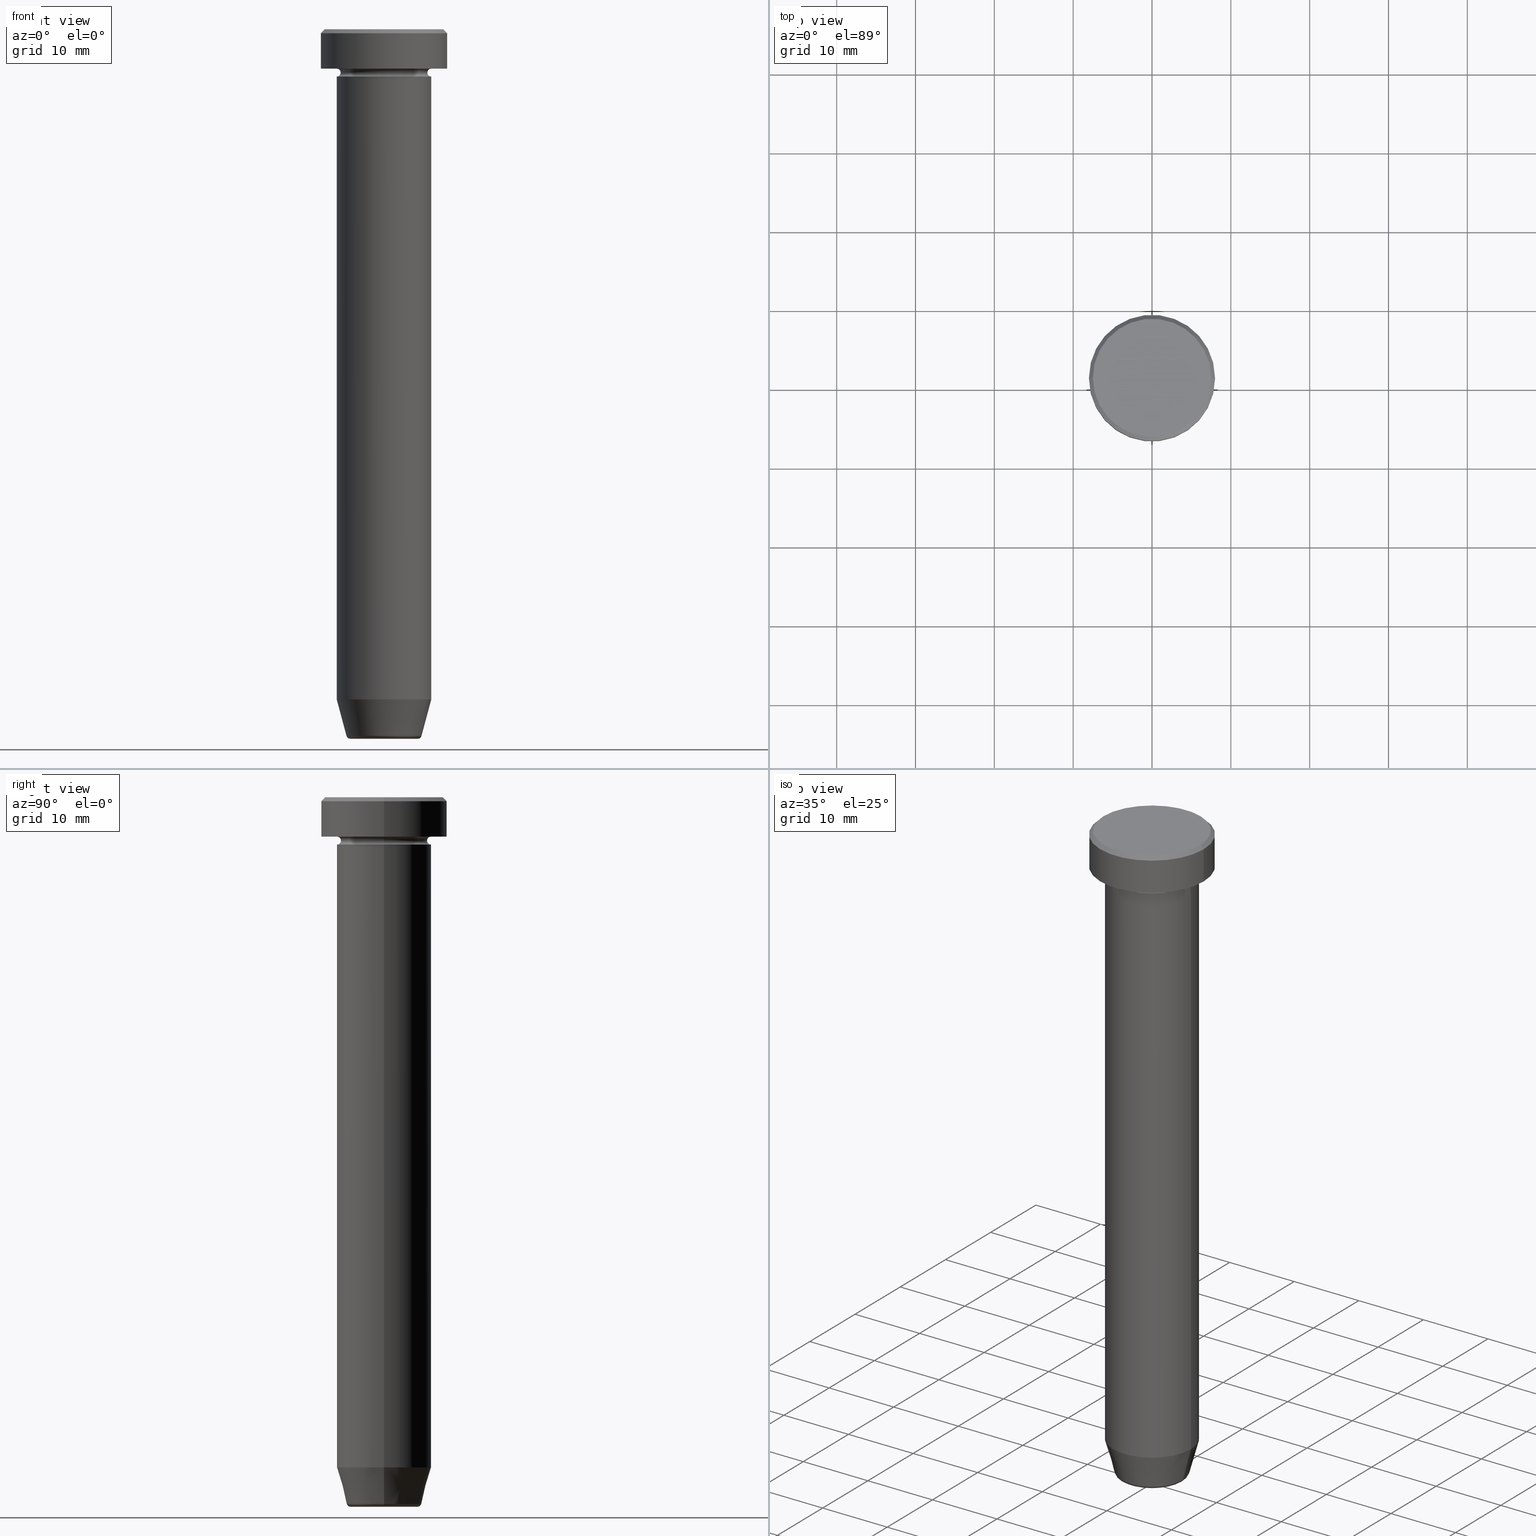
[diagram: canonical four-view strip — front | top / right | iso, engineering-drawing reading convention]
A machine part, canonical four-view strip (front | top / right | iso — engineering-drawing reading convention). The complete STEP part file that produces these views, byte-faithful:
ISO-10303-21;
HEADER;
FILE_DESCRIPTION (( 'STEP AP203' ),
    '1' );
FILE_NAME ('9665.STEP',
    '2024-01-02T23:15:29',
    ( '' ),
    ( '' ),
    'SwSTEP 2.0',
    'SolidWorks 2019',
    '' );
FILE_SCHEMA (( 'CONFIG_CONTROL_DESIGN' ));
ENDSEC;

DATA;
#1 = ADVANCED_FACE ( 'NONE', ( #79 ), #69, .T. ) ;
#2 = ORIENTED_EDGE ( 'NONE', *, *, #291, .T. ) ;
#3 = DIRECTION ( 'NONE',  ( -1.000000000000000000, 0.000000000000000000, 0.000000000000000000 ) ) ;
#4 = CIRCLE ( 'NONE', #405, 7.500000000000009770 ) ;
#5 = PLANE ( 'NONE',  #459 ) ;
#6 = ADVANCED_FACE ( 'NONE', ( #348 ), #164, .T. ) ;
#7 = DIRECTION ( 'NONE',  ( -0.000000000000000000, -0.000000000000000000, 1.000000000000000000 ) ) ;
#8 = AXIS2_PLACEMENT_3D ( 'NONE', #202, #21, #18 ) ;
#9 = ORIENTED_EDGE ( 'NONE', *, *, #495, .F. ) ;
#10 = CARTESIAN_POINT ( 'NONE',  ( 0.000000000000000000, 0.000000000000000000, -89.50000000000000000 ) ) ;
#11 = CIRCLE ( 'NONE', #172, 6.000000000000000000 ) ;
#12 = CARTESIAN_POINT ( 'NONE',  ( 0.000000000000000000, 0.000000000000000000, -90.00000000000000000 ) ) ;
#13 = CARTESIAN_POINT ( 'NONE',  ( 0.000000000000000000, 0.000000000000000000, -84.99999999999998579 ) ) ;
#14 = ORIENTED_EDGE ( 'NONE', *, *, #433, .T. ) ;
#15 = DIRECTION ( 'NONE',  ( 1.000000000000000000, 0.000000000000000000, 0.000000000000000000 ) ) ;
#16 = ORIENTED_EDGE ( 'NONE', *, *, #366, .F. ) ;
#17 = DIRECTION ( 'NONE',  ( 1.000000000000000000, 0.000000000000000000, 0.000000000000000000 ) ) ;
#18 = DIRECTION ( 'NONE',  ( -1.000000000000000000, 0.000000000000000000, -0.000000000000000000 ) ) ;
#19 = ORIENTED_EDGE ( 'NONE', *, *, #245, .F. ) ;
#20 = PERSON_AND_ORGANIZATION_ROLE ( 'creator' ) ;
#21 = DIRECTION ( 'NONE',  ( 0.000000000000000000, 0.000000000000000000, -1.000000000000000000 ) ) ;
#22 = DIRECTION ( 'NONE',  ( -0.000000000000000000, -0.000000000000000000, 1.000000000000000000 ) ) ;
#23 = VECTOR ( 'NONE', #287, 1000.000000000000114 ) ;
#24 = CARTESIAN_POINT ( 'NONE',  ( -6.000000000000000000, 7.347880794884119736E-16, 0.000000000000000000 ) ) ;
#25 = EDGE_LOOP ( 'NONE', ( #109, #219, #362, #588 ) ) ;
#26 = DIRECTION ( 'NONE',  ( -0.000000000000000000, -0.000000000000000000, 1.000000000000000000 ) ) ;
#27 = CARTESIAN_POINT ( 'NONE',  ( 0.000000000000000000, 0.000000000000000000, -5.000000000000000000 ) ) ;
#28 = ORIENTED_EDGE ( 'NONE', *, *, #191, .T. ) ;
#29 = ORIENTED_EDGE ( 'NONE', *, *, #424, .T. ) ;
#30 = AXIS2_PLACEMENT_3D ( 'NONE', #467, #386, #469 ) ;
#31 = DIRECTION ( 'NONE',  ( -0.000000000000000000, -0.000000000000000000, 1.000000000000000000 ) ) ;
#32 = CC_DESIGN_APPROVAL ( #356, ( #140 ) ) ;
#33 = VERTEX_POINT ( 'NONE', #76 ) ;
#34 = LINE ( 'NONE', #211, #423 ) ;
#35 = CARTESIAN_POINT ( 'NONE',  ( -6.000000000000000000, 7.347880794884119736E-16, 0.000000000000000000 ) ) ;
#36 = ORIENTED_EDGE ( 'NONE', *, *, #505, .T. ) ;
#37 = VERTEX_POINT ( 'NONE', #581 ) ;
#38 = CARTESIAN_POINT ( 'NONE',  ( 0.000000000000000000, 0.000000000000000000, -6.000000000000000000 ) ) ;
#39 = SECURITY_CLASSIFICATION_LEVEL ( 'unclassified' ) ;
#40 = PRODUCT_DEFINITION_SHAPE ( 'NONE', 'NONE',  #140 ) ;
#41 = ORIENTED_EDGE ( 'NONE', *, *, #495, .T. ) ;
#42 = EDGE_CURVE ( 'NONE', #567, #272, #519, .T. ) ;
#43 = CIRCLE ( 'NONE', #506, 4.759553456999439547 ) ;
#44 = AXIS2_PLACEMENT_3D ( 'NONE', #350, #529, #481 ) ;
#45 = CONICAL_SURFACE ( 'NONE', #429, 4.660254037844383745, 0.2617993877991497409 ) ;
#46 = DIRECTION ( 'NONE',  ( 1.000000000000000000, 0.000000000000000000, 0.000000000000000000 ) ) ;
#47 = DIRECTION ( 'NONE',  ( 1.000000000000000000, 0.000000000000000000, 0.000000000000000000 ) ) ;
#48 = APPROVAL ( #450, 'NEUR�EN�' ) ;
#49 = EDGE_CURVE ( 'NONE', #452, #336, #570, .T. ) ;
#50 = CARTESIAN_POINT ( 'NONE',  ( 0.000000000000000000, 0.000000000000000000, -22.50000000000000000 ) ) ;
#51 = AXIS2_PLACEMENT_3D ( 'NONE', #564, #384, #15 ) ;
#52 = UNCERTAINTY_MEASURE_WITH_UNIT (LENGTH_MEASURE( 1.000000000000000082E-05 ), #317, 'distance_accuracy_value', 'NONE');
#53 = EDGE_CURVE ( 'NONE', #336, #122, #262, .T. ) ;
#54 = AXIS2_PLACEMENT_3D ( 'NONE', #311, #252, #17 ) ;
#55 = DIRECTION ( 'NONE',  ( 0.000000000000000000, 0.000000000000000000, -1.000000000000000000 ) ) ;
#56 = CARTESIAN_POINT ( 'NONE',  ( 6.000000000000000000, 0.000000000000000000, -22.50000000000000000 ) ) ;
#57 = CARTESIAN_POINT ( 'NONE',  ( 6.000000000000000000, 7.347880794884119736E-16, -4.999999999999999112 ) ) ;
#58 = CARTESIAN_POINT ( 'NONE',  ( 0.000000000000000000, 0.000000000000000000, -5.500000000000000000 ) ) ;
#59 = DIRECTION ( 'NONE',  ( 0.000000000000000000, 0.000000000000000000, -1.000000000000000000 ) ) ;
#60 = DIRECTION ( 'NONE',  ( -0.000000000000000000, -0.000000000000000000, 1.000000000000000000 ) ) ;
#61 = TOROIDAL_SURFACE ( 'NONE', #110, 6.000000000000000000, 0.5000000000000000000 ) ;
#62 = ORIENTED_EDGE ( 'NONE', *, *, #419, .F. ) ;
#63 = FACE_BOUND ( 'NONE', #93, .T. ) ;
#64 = CYLINDRICAL_SURFACE ( 'NONE', #233, 8.000000000000000000 ) ;
#65 = AXIS2_PLACEMENT_3D ( 'NONE', #456, #82, #545 ) ;
#66 = EDGE_CURVE ( 'NONE', #470, #520, #259, .T. ) ;
#67 = ORIENTED_EDGE ( 'NONE', *, *, #337, .F. ) ;
#68 = FACE_OUTER_BOUND ( 'NONE', #448, .T. ) ;
#69 = PLANE ( 'NONE',  #507 ) ;
#70 = CARTESIAN_POINT ( 'NONE',  ( 4.276590543854903004, 0.000000000000000000, -90.00000000000000000 ) ) ;
#71 = ADVANCED_FACE ( 'NONE', ( #385 ), #64, .T. ) ;
#72 = LINE ( 'NONE', #299, #281 ) ;
#73 = CARTESIAN_POINT ( 'NONE',  ( 0.000000000000000000, 0.000000000000000000, 0.000000000000000000 ) ) ;
#74 = PERSON_AND_ORGANIZATION_ROLE ( 'design_owner' ) ;
#75 = VECTOR ( 'NONE', #215, 1000.000000000000000 ) ;
#76 = CARTESIAN_POINT ( 'NONE',  ( -8.000000000000000000, 9.797174393178825657E-16, -0.4999999999999935052 ) ) ;
#77 = CARTESIAN_POINT ( 'NONE',  ( -8.000000000000000000, 9.797174393178825657E-16, -5.000000000000000000 ) ) ;
#78 = EDGE_LOOP ( 'NONE', ( #590, #490, #108, #364 ) ) ;
#79 = FACE_OUTER_BOUND ( 'NONE', #294, .T. ) ;
#80 = DIRECTION ( 'NONE',  ( -0.000000000000000000, -0.000000000000000000, 1.000000000000000000 ) ) ;
#81 = ORIENTED_EDGE ( 'NONE', *, *, #318, .F. ) ;
#82 = DIRECTION ( 'NONE',  ( -0.000000000000000000, -0.000000000000000000, 1.000000000000000000 ) ) ;
#83 = ADVANCED_FACE ( 'NONE', ( #523 ), #300, .T. ) ;
#84 = DIRECTION ( 'NONE',  ( -0.000000000000000000, -0.000000000000000000, 1.000000000000000000 ) ) ;
#85 = CARTESIAN_POINT ( 'NONE',  ( -6.000000000000000000, 7.347880794884119736E-16, -84.99999999999998579 ) ) ;
#86 = ORIENTED_EDGE ( 'NONE', *, *, #550, .T. ) ;
#87 = CARTESIAN_POINT ( 'NONE',  ( -6.000000000000000000, 7.347880794884119736E-16, -22.50000000000000000 ) ) ;
#88 = EDGE_LOOP ( 'NONE', ( #454, #398, #598, #265 ) ) ;
#89 = CARTESIAN_POINT ( 'NONE',  ( 0.000000000000000000, 0.000000000000000000, 0.000000000000000000 ) ) ;
#90 = ADVANCED_FACE ( 'NONE', ( #213 ), #218, .T. ) ;
#91 = DIRECTION ( 'NONE',  ( -1.000000000000000000, 0.000000000000000000, 0.000000000000000000 ) ) ;
#92 = CC_DESIGN_APPROVAL ( #48, ( #374 ) ) ;
#93 = EDGE_LOOP ( 'NONE', ( #125, #449 ) ) ;
#94 = CARTESIAN_POINT ( 'NONE',  ( 0.000000000000000000, 0.000000000000000000, -22.50000000000000000 ) ) ;
#95 = EDGE_LOOP ( 'NONE', ( #62, #209, #306, #223 ) ) ;
#96 = CALENDAR_DATE ( 2024, 3, 1 ) ;
#97 = ADVANCED_FACE ( 'NONE', ( #551 ), #400, .T. ) ;
#98 = PERSON_AND_ORGANIZATION_ROLE ( 'classification_officer' ) ;
#99 = ORIENTED_EDGE ( 'NONE', *, *, #188, .F. ) ;
#100 = AXIS2_PLACEMENT_3D ( 'NONE', #27, #228, #544 ) ;
#101 = AXIS2_PLACEMENT_3D ( 'NONE', #94, #129, #266 ) ;
#102 = FACE_OUTER_BOUND ( 'NONE', #408, .T. ) ;
#103 = CARTESIAN_POINT ( 'NONE',  ( 4.276590543854903004, 0.000000000000000000, -89.50000000000000000 ) ) ;
#104 = CONICAL_SURFACE ( 'NONE', #422, 7.500000000000009770, 0.7853981633974447263 ) ;
#105 = EDGE_CURVE ( 'NONE', #457, #567, #268, .T. ) ;
#106 = DIRECTION ( 'NONE',  ( 1.000000000000000000, 0.000000000000000000, 0.000000000000000000 ) ) ;
#107 = DIRECTION ( 'NONE',  ( 1.000000000000000000, 0.000000000000000000, 0.000000000000000000 ) ) ;
#108 = ORIENTED_EDGE ( 'NONE', *, *, #318, .T. ) ;
#109 = ORIENTED_EDGE ( 'NONE', *, *, #245, .T. ) ;
#110 = AXIS2_PLACEMENT_3D ( 'NONE', #58, #244, #425 ) ;
#111 = FACE_OUTER_BOUND ( 'NONE', #175, .T. ) ;
#112 = ORIENTED_EDGE ( 'NONE', *, *, #269, .F. ) ;
#113 = APPROVAL_PERSON_ORGANIZATION ( #258, #48, #438 ) ;
#114 = ADVANCED_FACE ( 'NONE', ( #274 ), #246, .F. ) ;
#115 = DIRECTION ( 'NONE',  ( -0.000000000000000000, -0.000000000000000000, 1.000000000000000000 ) ) ;
#116 = EDGE_LOOP ( 'NONE', ( #118, #345, #2, #361 ) ) ;
#117 = CARTESIAN_POINT ( 'NONE',  ( 0.000000000000000000, 0.000000000000000000, -90.00000000000000000 ) ) ;
#118 = ORIENTED_EDGE ( 'NONE', *, *, #200, .F. ) ;
#119 = DIRECTION ( 'NONE',  ( -0.000000000000000000, -0.000000000000000000, 1.000000000000000000 ) ) ;
#120 = DIRECTION ( 'NONE',  ( -0.000000000000000000, -0.000000000000000000, 1.000000000000000000 ) ) ;
#121 = CARTESIAN_POINT ( 'NONE',  ( -4.276590543854903004, 5.237312920795746049E-16, -89.50000000000000000 ) ) ;
#122 = VERTEX_POINT ( 'NONE', #85 ) ;
#123 = EDGE_CURVE ( 'NONE', #520, #541, #312, .T. ) ;
#124 = AXIS2_PLACEMENT_3D ( 'NONE', #479, #377, #255 ) ;
#125 = ORIENTED_EDGE ( 'NONE', *, *, #453, .T. ) ;
#126 = CARTESIAN_POINT ( 'NONE',  ( 0.000000000000000000, 0.000000000000000000, -0.4999999999999935052 ) ) ;
#127 = ORIENTED_EDGE ( 'NONE', *, *, #461, .F. ) ;
#128 = VERTEX_POINT ( 'NONE', #446 ) ;
#129 = DIRECTION ( 'NONE',  ( -0.000000000000000000, -0.000000000000000000, 1.000000000000000000 ) ) ;
#130 = CARTESIAN_POINT ( 'NONE',  ( 7.500000000000009770, 9.491012693391993703E-16, 0.000000000000000000 ) ) ;
#131 = ORIENTED_EDGE ( 'NONE', *, *, #433, .F. ) ;
#132 = CIRCLE ( 'NONE', #270, 6.000000000000000000 ) ;
#133 = AXIS2_PLACEMENT_3D ( 'NONE', #388, #510, #106 ) ;
#134 = DIRECTION ( 'NONE',  ( 1.000000000000000000, 0.000000000000000000, 0.000000000000000000 ) ) ;
#135 = ORIENTED_EDGE ( 'NONE', *, *, #191, .F. ) ;
#136 = DATE_AND_TIME ( #96, #159 ) ;
#137 = APPROVAL_DATE_TIME ( #235, #199 ) ;
#138 = APPLICATION_CONTEXT ( 'configuration controlled 3d designs of mechanical parts and assemblies' ) ;
#139 = CARTESIAN_POINT ( 'NONE',  ( 0.000000000000000000, 0.000000000000000000, -5.500000000000000000 ) ) ;
#140 = PRODUCT_DEFINITION ( 'NEZN�M�', '', #374, #329 ) ;
#141 = AXIS2_PLACEMENT_3D ( 'NONE', #482, #7, #297 ) ;
#142 = DIRECTION ( 'NONE',  ( 1.000000000000000000, 0.000000000000000000, 0.000000000000000000 ) ) ;
#143 = CONICAL_SURFACE ( 'NONE', #475, 7.500000000000009770, 0.7853981633974447263 ) ;
#144 = CARTESIAN_POINT ( 'NONE',  ( 4.759553456999439547, 0.000000000000000000, -89.62940952255125637 ) ) ;
#145 = ADVANCED_FACE ( 'NONE', ( #494 ), #500, .F. ) ;
#146 = DIRECTION ( 'NONE',  ( 0.000000000000000000, 0.000000000000000000, -1.000000000000000000 ) ) ;
#147 = CIRCLE ( 'NONE', #447, 0.5000000000000004441 ) ;
#148 = CARTESIAN_POINT ( 'NONE',  ( 6.000000000000000000, 0.000000000000000000, -22.50000000000000000 ) ) ;
#149 = CC_DESIGN_APPROVAL ( #199, ( #185 ) ) ;
#150 = CARTESIAN_POINT ( 'NONE',  ( 0.000000000000000000, 0.000000000000000000, 0.000000000000000000 ) ) ;
#151 = ORIENTED_EDGE ( 'NONE', *, *, #282, .F. ) ;
#152 = DIRECTION ( 'NONE',  ( 1.000000000000000000, 0.000000000000000000, 0.000000000000000000 ) ) ;
#153 = DIRECTION ( 'NONE',  ( -0.000000000000000000, -1.000000000000000000, -0.000000000000000000 ) ) ;
#154 = EDGE_CURVE ( 'NONE', #359, #267, #156, .T. ) ;
#155 = DIRECTION ( 'NONE',  ( -0.000000000000000000, -0.000000000000000000, 1.000000000000000000 ) ) ;
#156 = CIRCLE ( 'NONE', #100, 6.000000000000000000 ) ;
#157 = ORIENTED_EDGE ( 'NONE', *, *, #575, .F. ) ;
#158 = ORIENTED_EDGE ( 'NONE', *, *, #515, .F. ) ;
#159 = LOCAL_TIME ( 0, 15, 29.00000000000000000, #352 ) ;
#160 = EDGE_CURVE ( 'NONE', #122, #580, #222, .T. ) ;
#161 = DIRECTION ( 'NONE',  ( 1.000000000000000000, 0.000000000000000000, 0.000000000000000000 ) ) ;
#162 =( NAMED_UNIT ( * ) PLANE_ANGLE_UNIT ( ) SI_UNIT ( $, .RADIAN. ) );
#163 = FACE_OUTER_BOUND ( 'NONE', #478, .T. ) ;
#164 = CYLINDRICAL_SURFACE ( 'NONE', #44, 6.000000000000000000 ) ;
#165 = CARTESIAN_POINT ( 'NONE',  ( 0.000000000000000000, 0.000000000000000000, -6.000000000000000000 ) ) ;
#166 = DIRECTION ( 'NONE',  ( 1.000000000000000000, 0.000000000000000000, 0.000000000000000000 ) ) ;
#167 = VERTEX_POINT ( 'NONE', #77 ) ;
#168 = DIRECTION ( 'NONE',  ( -0.000000000000000000, -0.000000000000000000, 1.000000000000000000 ) ) ;
#169 = EDGE_CURVE ( 'NONE', #457, #336, #428, .T. ) ;
#170 = VERTEX_POINT ( 'NONE', #130 ) ;
#171 = CIRCLE ( 'NONE', #30, 4.276590543854903004 ) ;
#172 = AXIS2_PLACEMENT_3D ( 'NONE', #13, #60, #242 ) ;
#173 = DIRECTION ( 'NONE',  ( 1.000000000000000000, 0.000000000000000000, 0.000000000000000000 ) ) ;
#174 = ORIENTED_EDGE ( 'NONE', *, *, #371, .T. ) ;
#175 = EDGE_LOOP ( 'NONE', ( #383, #537, #476, #112 ) ) ;
#176 = ORIENTED_EDGE ( 'NONE', *, *, #238, .T. ) ;
#177 = APPLICATION_PROTOCOL_DEFINITION ( 'international standard', 'config_control_design', 1994, #397 ) ;
#178 = DIRECTION ( 'NONE',  ( -0.000000000000000000, -0.000000000000000000, 1.000000000000000000 ) ) ;
#179 = ORIENTED_EDGE ( 'NONE', *, *, #474, .F. ) ;
#180 = ORIENTED_EDGE ( 'NONE', *, *, #105, .T. ) ;
#181 = AXIS2_PLACEMENT_3D ( 'NONE', #10, #477, #152 ) ;
#182 = VECTOR ( 'NONE', #203, 1000.000000000000000 ) ;
#183 = DIRECTION ( 'NONE',  ( -1.000000000000000000, 0.000000000000000000, 0.000000000000000000 ) ) ;
#184 = DIRECTION ( 'NONE',  ( 0.000000000000000000, 0.000000000000000000, -1.000000000000000000 ) ) ;
#185 = SECURITY_CLASSIFICATION ( '', '', #39 ) ;
#186 = CALENDAR_DATE ( 2024, 3, 1 ) ;
#187 = CC_DESIGN_PERSON_AND_ORGANIZATION_ASSIGNMENT ( #595, #98, ( #185 ) ) ;
#188 = EDGE_CURVE ( 'NONE', #541, #37, #132, .T. ) ;
#189 = AXIS2_PLACEMENT_3D ( 'NONE', #342, #119, #293 ) ;
#190 = LOCAL_TIME ( 0, 15, 29.00000000000000000, #273 ) ;
#191 = EDGE_CURVE ( 'NONE', #470, #37, #351, .T. ) ;
#192 = DIRECTION ( 'NONE',  ( 1.000000000000000000, 0.000000000000000000, 0.000000000000000000 ) ) ;
#193 = FACE_OUTER_BOUND ( 'NONE', #25, .T. ) ;
#194 = CONICAL_SURFACE ( 'NONE', #582, 4.660254037844383745, 0.2617993877991497409 ) ;
#195 = CARTESIAN_POINT ( 'NONE',  ( 0.000000000000000000, 0.000000000000000000, -0.4999999999999935052 ) ) ;
#196 = ORIENTED_EDGE ( 'NONE', *, *, #169, .T. ) ;
#197 = CIRCLE ( 'NONE', #133, 7.500000000000009770 ) ;
#198 = PLANE ( 'NONE',  #8 ) ;
#199 = APPROVAL ( #373, 'NEUR�EN�' ) ;
#200 = EDGE_CURVE ( 'NONE', #323, #541, #147, .T. ) ;
#201 = ORIENTED_EDGE ( 'NONE', *, *, #413, .F. ) ;
#202 = CARTESIAN_POINT ( 'NONE',  ( 0.000000000000000000, 8.000000000000000000, -5.000000000000000000 ) ) ;
#203 = DIRECTION ( 'NONE',  ( -0.000000000000000000, -0.000000000000000000, 1.000000000000000000 ) ) ;
#204 = DIRECTION ( 'NONE',  ( -1.000000000000000000, 0.000000000000000000, 0.000000000000000000 ) ) ;
#205 = CARTESIAN_POINT ( 'NONE',  ( 5.500000000000000000, 0.000000000000000000, -5.500000000000000000 ) ) ;
#206 = CARTESIAN_POINT ( 'NONE',  ( 8.000000000000000000, 0.000000000000000000, 0.000000000000000000 ) ) ;
#207 = APPROVAL_DATE_TIME ( #555, #356 ) ;
#208 = DIRECTION ( 'NONE',  ( 1.000000000000000000, 0.000000000000000000, 0.000000000000000000 ) ) ;
#209 = ORIENTED_EDGE ( 'NONE', *, *, #302, .T. ) ;
#210 = AXIS2_PLACEMENT_3D ( 'NONE', #340, #390, #243 ) ;
#211 = CARTESIAN_POINT ( 'NONE',  ( -8.000000000000000000, 9.797174393178825657E-16, 0.000000000000000000 ) ) ;
#212 = DIRECTION ( 'NONE',  ( 1.000000000000000000, 0.000000000000000000, 0.000000000000000000 ) ) ;
#213 = FACE_OUTER_BOUND ( 'NONE', #88, .T. ) ;
#214 = CARTESIAN_POINT ( 'NONE',  ( -4.660254037844383745, 5.707165190659652868E-16, -90.00000000000000000 ) ) ;
#215 = DIRECTION ( 'NONE',  ( -0.000000000000000000, -0.000000000000000000, 1.000000000000000000 ) ) ;
#216 = FACE_OUTER_BOUND ( 'NONE', #95, .T. ) ;
#217 = EDGE_LOOP ( 'NONE', ( #548, #14 ) ) ;
#218 = CYLINDRICAL_SURFACE ( 'NONE', #558, 6.000000000000000000 ) ;
#219 = ORIENTED_EDGE ( 'NONE', *, *, #419, .T. ) ;
#220 = CARTESIAN_POINT ( 'NONE',  ( -4.276590543854903004, 5.533042413640413448E-16, -90.00000000000000000 ) ) ;
#221 = AXIS2_PLACEMENT_3D ( 'NONE', #50, #463, #47 ) ;
#222 = LINE ( 'NONE', #24, #75 ) ;
#223 = ORIENTED_EDGE ( 'NONE', *, *, #154, .F. ) ;
#224 = PRODUCT ( '9665', '9665', '', ( #504 ) ) ;
#225 = ORIENTED_EDGE ( 'NONE', *, *, #66, .F. ) ;
#226 = CARTESIAN_POINT ( 'NONE',  ( 6.000000000000000000, 0.000000000000000000, -84.99999999999998579 ) ) ;
#227 = DATE_AND_TIME ( #572, #439 ) ;
#228 = DIRECTION ( 'NONE',  ( -0.000000000000000000, -0.000000000000000000, 1.000000000000000000 ) ) ;
#229 = VERTEX_POINT ( 'NONE', #592 ) ;
#230 = EDGE_LOOP ( 'NONE', ( #67, #9, #36, #313 ) ) ;
#231 = ORIENTED_EDGE ( 'NONE', *, *, #371, .F. ) ;
#232 = CIRCLE ( 'NONE', #473, 8.000000000000000000 ) ;
#233 = AXIS2_PLACEMENT_3D ( 'NONE', #565, #155, #341 ) ;
#234 = ADVANCED_FACE ( 'NONE', ( #579 ), #547, .T. ) ;
#235 = DATE_AND_TIME ( #186, #416 ) ;
#236 = CIRCLE ( 'NONE', #524, 4.276590543854903004 ) ;
#237 = APPROVAL_PERSON_ORGANIZATION ( #557, #199, #599 ) ;
#238 = EDGE_CURVE ( 'NONE', #229, #33, #232, .T. ) ;
#239 = DIRECTION ( 'NONE',  ( -1.000000000000000000, 0.000000000000000000, 0.000000000000000000 ) ) ;
#240 = DIRECTION ( 'NONE',  ( 1.000000000000000000, 0.000000000000000000, 0.000000000000000000 ) ) ;
#241 = CARTESIAN_POINT ( 'NONE',  ( 6.000000000000000000, 0.000000000000000000, -5.500000000000000000 ) ) ;
#242 = DIRECTION ( 'NONE',  ( 1.000000000000000000, 0.000000000000000000, 0.000000000000000000 ) ) ;
#243 = DIRECTION ( 'NONE',  ( 1.000000000000000000, 0.000000000000000000, 0.000000000000000000 ) ) ;
#244 = DIRECTION ( 'NONE',  ( 0.000000000000000000, 0.000000000000000000, -1.000000000000000000 ) ) ;
#245 = EDGE_CURVE ( 'NONE', #323, #578, #404, .T. ) ;
#246 = TOROIDAL_SURFACE ( 'NONE', #367, 6.000000000000000000, 0.5000000000000000000 ) ;
#247 = DIRECTION ( 'NONE',  ( 0.000000000000000000, -0.000000000000000000, 1.000000000000000000 ) ) ;
#248 = CARTESIAN_POINT ( 'NONE',  ( -5.500000000000000000, 7.041719095097280880E-16, -5.500000000000000000 ) ) ;
#249 = AXIS2_PLACEMENT_3D ( 'NONE', #303, #26, #290 ) ;
#250 = CIRCLE ( 'NONE', #571, 6.000000000000000000 ) ;
#251 = DIRECTION ( 'NONE',  ( 0.000000000000000000, 0.000000000000000000, -1.000000000000000000 ) ) ;
#252 = DIRECTION ( 'NONE',  ( -0.000000000000000000, -0.000000000000000000, 1.000000000000000000 ) ) ;
#253 = ORIENTED_EDGE ( 'NONE', *, *, #53, .T. ) ;
#254 = CARTESIAN_POINT ( 'NONE',  ( 0.000000000000000000, 0.000000000000000000, -89.62940952255125637 ) ) ;
#255 = DIRECTION ( 'NONE',  ( -1.000000000000000000, -1.224646799147351482E-16, 0.000000000000000000 ) ) ;
#256 = APPLICATION_PROTOCOL_DEFINITION ( 'international standard', 'config_control_design', 1994, #138 ) ;
#257 = AXIS2_PLACEMENT_3D ( 'NONE', #139, #324, #46 ) ;
#258 = PERSON_AND_ORGANIZATION ( #414, #540 ) ;
#259 = CIRCLE ( 'NONE', #249, 6.000000000000000000 ) ;
#260 = CIRCLE ( 'NONE', #332, 6.000000000000000000 ) ;
#261 = ADVANCED_FACE ( 'NONE', ( #420 ), #104, .T. ) ;
#262 = LINE ( 'NONE', #214, #512 ) ;
#263 = DIRECTION ( 'NONE',  ( -1.000000000000000000, 0.000000000000000000, -0.000000000000000000 ) ) ;
#264 = ORIENTED_EDGE ( 'NONE', *, *, #49, .F. ) ;
#265 = ORIENTED_EDGE ( 'NONE', *, *, #42, .F. ) ;
#266 = DIRECTION ( 'NONE',  ( 1.000000000000000000, 0.000000000000000000, 0.000000000000000000 ) ) ;
#267 = VERTEX_POINT ( 'NONE', #468 ) ;
#268 = LINE ( 'NONE', #319, #327 ) ;
#269 = EDGE_CURVE ( 'NONE', #546, #457, #485, .T. ) ;
#270 = AXIS2_PLACEMENT_3D ( 'NONE', #165, #584, #395 ) ;
#271 = AXIS2_PLACEMENT_3D ( 'NONE', #195, #380, #161 ) ;
#272 = VERTEX_POINT ( 'NONE', #56 ) ;
#273 = COORDINATED_UNIVERSAL_TIME_OFFSET ( 1, 0, .AHEAD. ) ;
#274 = FACE_OUTER_BOUND ( 'NONE', #116, .T. ) ;
#275 = ADVANCED_FACE ( 'NONE', ( #193 ), #61, .F. ) ;
#276 = ORIENTED_EDGE ( 'NONE', *, *, #53, .F. ) ;
#277 = PERSON_AND_ORGANIZATION ( #414, #540 ) ;
#278 = CARTESIAN_POINT ( 'NONE',  ( 0.000000000000000000, 0.000000000000000000, -90.00000000000000000 ) ) ;
#279 = COORDINATED_UNIVERSAL_TIME_OFFSET ( 1, 0, .AHEAD. ) ;
#280 = EDGE_LOOP ( 'NONE', ( #389, #29, #86, #176 ) ) ;
#281 = VECTOR ( 'NONE', #568, 1000.000000000000114 ) ;
#282 = EDGE_CURVE ( 'NONE', #546, #452, #236, .T. ) ;
#283 = CC_DESIGN_PERSON_AND_ORGANIZATION_ASSIGNMENT ( #409, #591, ( #374 ) ) ;
#284 = DIRECTION ( 'NONE',  ( 0.000000000000000000, 0.000000000000000000, -1.000000000000000000 ) ) ;
#285 = CIRCLE ( 'NONE', #51, 6.000000000000000000 ) ;
#286 = SHAPE_DEFINITION_REPRESENTATION ( #40, #553 ) ;
#287 = DIRECTION ( 'NONE',  ( -0.7071067811865451302, 0.000000000000000000, -0.7071067811865500152 ) ) ;
#288 = DIRECTION ( 'NONE',  ( -0.000000000000000000, -0.000000000000000000, 1.000000000000000000 ) ) ;
#289 = EDGE_CURVE ( 'NONE', #452, #546, #171, .T. ) ;
#290 = DIRECTION ( 'NONE',  ( 1.000000000000000000, 0.000000000000000000, 0.000000000000000000 ) ) ;
#291 = EDGE_CURVE ( 'NONE', #578, #37, #330, .T. ) ;
#292 = VECTOR ( 'NONE', #31, 1000.000000000000000 ) ;
#293 = DIRECTION ( 'NONE',  ( 1.000000000000000000, 0.000000000000000000, 0.000000000000000000 ) ) ;
#294 = EDGE_LOOP ( 'NONE', ( #225, #231 ) ) ;
#295 = APPROVAL_PERSON_ORGANIZATION ( #480, #356, #432 ) ;
#296 = DIRECTION ( 'NONE',  ( -0.2588190451025210170, 3.169619151431768639E-17, 0.9659258262890680902 ) ) ;
#297 = DIRECTION ( 'NONE',  ( 1.000000000000000000, 0.000000000000000000, 0.000000000000000000 ) ) ;
#298 = CARTESIAN_POINT ( 'NONE',  ( -7.500000000000009770, 0.000000000000000000, 0.000000000000000000 ) ) ;
#299 = CARTESIAN_POINT ( 'NONE',  ( 7.500000000000009770, 9.184850993605161750E-16, 0.000000000000000000 ) ) ;
#300 = CYLINDRICAL_SURFACE ( 'NONE', #583, 6.000000000000000000 ) ;
#301 = DIRECTION ( 'NONE',  ( 0.000000000000000000, -1.000000000000000000, 0.000000000000000000 ) ) ;
#302 = EDGE_CURVE ( 'NONE', #578, #323, #326, .T. ) ;
#303 = CARTESIAN_POINT ( 'NONE',  ( 0.000000000000000000, 0.000000000000000000, -22.50000000000000000 ) ) ;
#304 = CARTESIAN_POINT ( 'NONE',  ( 0.000000000000000000, 0.000000000000000000, 0.000000000000000000 ) ) ;
#305 = AXIS2_PLACEMENT_3D ( 'NONE', #533, #516, #107 ) ;
#306 = ORIENTED_EDGE ( 'NONE', *, *, #357, .T. ) ;
#307 = DIRECTION ( 'NONE',  ( 1.000000000000000000, 0.000000000000000000, 0.000000000000000000 ) ) ;
#308 = CC_DESIGN_DATE_AND_TIME_ASSIGNMENT ( #566, #344, ( #185 ) ) ;
#309 = ADVANCED_FACE ( 'NONE', ( #426 ), #569, .F. ) ;
#310 = CARTESIAN_POINT ( 'NONE',  ( -6.000000000000000000, 7.347880794884119736E-16, -5.500000000000000000 ) ) ;
#311 = CARTESIAN_POINT ( 'NONE',  ( 0.000000000000000000, 0.000000000000000000, -5.000000000000000000 ) ) ;
#312 = LINE ( 'NONE', #35, #355 ) ;
#313 = ORIENTED_EDGE ( 'NONE', *, *, #238, .F. ) ;
#314 = CIRCLE ( 'NONE', #522, 0.5000000000000004441 ) ;
#315 = MANIFOLD_SOLID_BREP ( 'Zkosen�1', #460 ) ;
#316 = CC_DESIGN_SECURITY_CLASSIFICATION ( #185, ( #374 ) ) ;
#317 =( LENGTH_UNIT ( ) NAMED_UNIT ( * ) SI_UNIT ( .MILLI., .METRE. ) );
#318 = EDGE_CURVE ( 'NONE', #33, #229, #562, .T. ) ;
#319 = CARTESIAN_POINT ( 'NONE',  ( 4.660254037844383745, 0.000000000000000000, -90.00000000000000000 ) ) ;
#320 = EDGE_LOOP ( 'NONE', ( #158, #443, #81, #325 ) ) ;
#321 = DIRECTION ( 'NONE',  ( -0.000000000000000000, -0.000000000000000000, 1.000000000000000000 ) ) ;
#322 = CALENDAR_DATE ( 2024, 3, 1 ) ;
#323 = VERTEX_POINT ( 'NONE', #248 ) ;
#324 = DIRECTION ( 'NONE',  ( -0.000000000000000000, -0.000000000000000000, 1.000000000000000000 ) ) ;
#325 = ORIENTED_EDGE ( 'NONE', *, *, #505, .F. ) ;
#326 = CIRCLE ( 'NONE', #189, 5.500000000000000000 ) ;
#327 = VECTOR ( 'NONE', #407, 1000.000000000000114 ) ;
#328 = CARTESIAN_POINT ( 'NONE',  ( 0.000000000000000000, 0.000000000000000000, 0.000000000000000000 ) ) ;
#329 = DESIGN_CONTEXT ( 'detailed design', #138, 'design' ) ;
#330 = CIRCLE ( 'NONE', #372, 0.5000000000000004441 ) ;
#331 = FACE_OUTER_BOUND ( 'NONE', #444, .T. ) ;
#332 = AXIS2_PLACEMENT_3D ( 'NONE', #412, #321, #3 ) ;
#333 = CARTESIAN_POINT ( 'NONE',  ( -6.000000000000000000, 0.000000000000000000, -5.500000000000000000 ) ) ;
#334 = LINE ( 'NONE', #206, #597 ) ;
#335 = CARTESIAN_POINT ( 'NONE',  ( -6.000000000000000000, 7.347880794884119736E-16, -22.50000000000000000 ) ) ;
#336 = VERTEX_POINT ( 'NONE', #471 ) ;
#337 = EDGE_CURVE ( 'NONE', #170, #229, #72, .T. ) ;
#338 = DIRECTION ( 'NONE',  ( 1.000000000000000000, 0.000000000000000000, 0.000000000000000000 ) ) ;
#339 = EDGE_LOOP ( 'NONE', ( #19, #368, #543, #415 ) ) ;
#340 = CARTESIAN_POINT ( 'NONE',  ( 0.000000000000000000, 0.000000000000000000, -22.50000000000000000 ) ) ;
#341 = DIRECTION ( 'NONE',  ( 1.000000000000000000, 0.000000000000000000, 0.000000000000000000 ) ) ;
#342 = CARTESIAN_POINT ( 'NONE',  ( 0.000000000000000000, 0.000000000000000000, -5.500000000000000000 ) ) ;
#343 = CLOSED_SHELL ( 'NONE', ( #379, #391, #90, #145, #83, #466, #542, #401 ) ) ;
#344 = DATE_TIME_ROLE ( 'classification_date' ) ;
#345 = ORIENTED_EDGE ( 'NONE', *, *, #302, .F. ) ;
#346 =( GEOMETRIC_REPRESENTATION_CONTEXT ( 3 ) GLOBAL_UNCERTAINTY_ASSIGNED_CONTEXT ( ( #52 ) ) GLOBAL_UNIT_ASSIGNED_CONTEXT ( ( #317, #162, #532 ) ) REPRESENTATION_CONTEXT ( 'NONE', 'WORKASPACE' ) );
#347 = DIRECTION ( 'NONE',  ( 1.000000000000000000, 0.000000000000000000, 0.000000000000000000 ) ) ;
#348 = FACE_OUTER_BOUND ( 'NONE', #489, .T. ) ;
#349 = ADVANCED_FACE ( 'NONE', ( #63, #430 ), #198, .T. ) ;
#350 = CARTESIAN_POINT ( 'NONE',  ( 0.000000000000000000, 0.000000000000000000, 0.000000000000000000 ) ) ;
#351 = LINE ( 'NONE', #587, #292 ) ;
#352 = COORDINATED_UNIVERSAL_TIME_OFFSET ( 1, 0, .AHEAD. ) ;
#353 = ORIENTED_EDGE ( 'NONE', *, *, #413, .T. ) ;
#354 = DIRECTION ( 'NONE',  ( 1.000000000000000000, 0.000000000000000000, 0.000000000000000000 ) ) ;
#355 = VECTOR ( 'NONE', #178, 1000.000000000000000 ) ;
#356 = APPROVAL ( #387, 'NEUR�EN�' ) ;
#357 = EDGE_CURVE ( 'NONE', #323, #267, #314, .T. ) ;
#358 = CIRCLE ( 'NONE', #101, 6.000000000000000000 ) ;
#359 = VERTEX_POINT ( 'NONE', #57 ) ;
#360 = DIRECTION ( 'NONE',  ( 0.000000000000000000, 0.000000000000000000, -1.000000000000000000 ) ) ;
#361 = ORIENTED_EDGE ( 'NONE', *, *, #461, .T. ) ;
#362 = ORIENTED_EDGE ( 'NONE', *, *, #453, .F. ) ;
#363 = CARTESIAN_POINT ( 'NONE',  ( 0.000000000000000000, 0.000000000000000000, -5.500000000000000000 ) ) ;
#364 = ORIENTED_EDGE ( 'NONE', *, *, #550, .F. ) ;
#365 = ORIENTED_EDGE ( 'NONE', *, *, #160, .F. ) ;
#366 = EDGE_CURVE ( 'NONE', #122, #567, #285, .T. ) ;
#367 = AXIS2_PLACEMENT_3D ( 'NONE', #363, #451, #173 ) ;
#368 = ORIENTED_EDGE ( 'NONE', *, *, #200, .T. ) ;
#369 = AXIS2_PLACEMENT_3D ( 'NONE', #487, #455, #183 ) ;
#370 = ORIENTED_EDGE ( 'NONE', *, *, #123, .T. ) ;
#371 = EDGE_CURVE ( 'NONE', #520, #470, #435, .T. ) ;
#372 = AXIS2_PLACEMENT_3D ( 'NONE', #241, #301, #59 ) ;
#373 = APPROVAL_STATUS ( 'not_yet_approved' ) ;
#374 = PRODUCT_DEFINITION_FORMATION_WITH_SPECIFIED_SOURCE ( 'LIBOVOLN�', '', #224, .NOT_KNOWN. ) ;
#375 = COORDINATED_UNIVERSAL_TIME_OFFSET ( 1, 0, .AHEAD. ) ;
#376 = CIRCLE ( 'NONE', #124, 0.5000000000000004441 ) ;
#377 = DIRECTION ( 'NONE',  ( -1.224646799147353207E-16, 1.000000000000000000, 0.000000000000000000 ) ) ;
#378 = CIRCLE ( 'NONE', #65, 8.000000000000000000 ) ;
#379 = ADVANCED_FACE ( 'NONE', ( #111 ), #393, .T. ) ;
#380 = DIRECTION ( 'NONE',  ( 0.000000000000000000, 0.000000000000000000, -1.000000000000000000 ) ) ;
#381 = CC_DESIGN_DATE_AND_TIME_ASSIGNMENT ( #227, #396, ( #140 ) ) ;
#382 = CARTESIAN_POINT ( 'NONE',  ( 0.000000000000000000, 0.000000000000000000, 0.000000000000000000 ) ) ;
#383 = ORIENTED_EDGE ( 'NONE', *, *, #289, .F. ) ;
#384 = DIRECTION ( 'NONE',  ( -0.000000000000000000, -0.000000000000000000, 1.000000000000000000 ) ) ;
#385 = FACE_OUTER_BOUND ( 'NONE', #78, .T. ) ;
#386 = DIRECTION ( 'NONE',  ( 0.000000000000000000, 0.000000000000000000, -1.000000000000000000 ) ) ;
#387 = APPROVAL_STATUS ( 'not_yet_approved' ) ;
#388 = CARTESIAN_POINT ( 'NONE',  ( 0.000000000000000000, 0.000000000000000000, 0.000000000000000000 ) ) ;
#389 = ORIENTED_EDGE ( 'NONE', *, *, #589, .F. ) ;
#390 = DIRECTION ( 'NONE',  ( -0.000000000000000000, -0.000000000000000000, 1.000000000000000000 ) ) ;
#391 = ADVANCED_FACE ( 'NONE', ( #68 ), #194, .T. ) ;
#392 = EDGE_LOOP ( 'NONE', ( #276, #353, #180, #16 ) ) ;
#393 = TOROIDAL_SURFACE ( 'NONE', #181, 4.276590543854903004, 0.5000000000000000000 ) ;
#394 = PERSON_AND_ORGANIZATION ( #414, #540 ) ;
#395 = DIRECTION ( 'NONE',  ( 1.000000000000000000, 0.000000000000000000, 0.000000000000000000 ) ) ;
#396 = DATE_TIME_ROLE ( 'creation_date' ) ;
#397 = APPLICATION_CONTEXT ( 'configuration controlled 3d designs of mechanical parts and assemblies' ) ;
#398 = ORIENTED_EDGE ( 'NONE', *, *, #160, .T. ) ;
#399 = CC_DESIGN_PERSON_AND_ORGANIZATION_ASSIGNMENT ( #277, #577, ( #374 ) ) ;
#400 = CYLINDRICAL_SURFACE ( 'NONE', #501, 6.000000000000000000 ) ;
#401 = ADVANCED_FACE ( 'NONE', ( #163 ), #511, .T. ) ;
#402 = DIRECTION ( 'NONE',  ( -1.000000000000000000, 0.000000000000000000, -0.000000000000000000 ) ) ;
#403 = DIRECTION ( 'NONE',  ( -0.000000000000000000, -0.000000000000000000, 1.000000000000000000 ) ) ;
#404 = CIRCLE ( 'NONE', #257, 5.500000000000000000 ) ;
#405 = AXIS2_PLACEMENT_3D ( 'NONE', #527, #115, #208 ) ;
#406 = CARTESIAN_POINT ( 'NONE',  ( 8.000000000000000000, 0.000000000000000000, -5.000000000000000000 ) ) ;
#407 = DIRECTION ( 'NONE',  ( 0.2588190451025210170, 0.000000000000000000, 0.9659258262890680902 ) ) ;
#408 = EDGE_LOOP ( 'NONE', ( #593, #418 ) ) ;
#409 = PERSON_AND_ORGANIZATION ( #414, #540 ) ;
#410 = CARTESIAN_POINT ( 'NONE',  ( 0.000000000000000000, 0.000000000000000000, 0.000000000000000000 ) ) ;
#411 = EDGE_LOOP ( 'NONE', ( #502, #174, #28, #99 ) ) ;
#412 = CARTESIAN_POINT ( 'NONE',  ( 0.000000000000000000, 0.000000000000000000, -5.000000000000000000 ) ) ;
#413 = EDGE_CURVE ( 'NONE', #336, #457, #43, .T. ) ;
#414 = PERSON ( 'NEUR�EN�', 'NEUR�EN�', 'NEUR�EN�', ('NEUR�EN�'), ('NEUR�EN�'), ('NEUR�EN�') ) ;
#415 = ORIENTED_EDGE ( 'NONE', *, *, #291, .F. ) ;
#416 = LOCAL_TIME ( 0, 15, 29.00000000000000000, #375 ) ;
#417 = DIRECTION ( 'NONE',  ( 1.000000000000000000, 0.000000000000000000, 0.000000000000000000 ) ) ;
#418 = ORIENTED_EDGE ( 'NONE', *, *, #289, .T. ) ;
#419 = EDGE_CURVE ( 'NONE', #578, #359, #376, .T. ) ;
#420 = FACE_OUTER_BOUND ( 'NONE', #230, .T. ) ;
#421 = ADVANCED_FACE ( 'NONE', ( #331 ), #5, .T. ) ;
#422 = AXIS2_PLACEMENT_3D ( 'NONE', #328, #284, #514 ) ;
#423 = VECTOR ( 'NONE', #120, 1000.000000000000000 ) ;
#424 = EDGE_CURVE ( 'NONE', #167, #574, #378, .T. ) ;
#425 = DIRECTION ( 'NONE',  ( -1.000000000000000000, 0.000000000000000000, 0.000000000000000000 ) ) ;
#426 = FACE_OUTER_BOUND ( 'NONE', #339, .T. ) ;
#427 = LINE ( 'NONE', #298, #23 ) ;
#428 = CIRCLE ( 'NONE', #493, 4.759553456999439547 ) ;
#429 = AXIS2_PLACEMENT_3D ( 'NONE', #278, #561, #192 ) ;
#430 = FACE_OUTER_BOUND ( 'NONE', #496, .T. ) ;
#431 = ORIENTED_EDGE ( 'NONE', *, *, #515, .T. ) ;
#432 = APPROVAL_ROLE ( '' ) ;
#433 = EDGE_CURVE ( 'NONE', #580, #272, #358, .T. ) ;
#434 = ORIENTED_EDGE ( 'NONE', *, *, #269, .T. ) ;
#435 = CIRCLE ( 'NONE', #210, 6.000000000000000000 ) ;
#436 = AXIS2_PLACEMENT_3D ( 'NONE', #121, #442, #440 ) ;
#437 = CARTESIAN_POINT ( 'NONE',  ( 0.000000000000000000, -3.469446951953614189E-15, -22.50000000000000000 ) ) ;
#438 = APPROVAL_ROLE ( '' ) ;
#439 = LOCAL_TIME ( 0, 15, 29.00000000000000000, #549 ) ;
#440 = DIRECTION ( 'NONE',  ( -1.000000000000000000, 1.224646799147353454E-16, 0.000000000000000000 ) ) ;
#441 = DIRECTION ( 'NONE',  ( 1.224646799147353207E-16, 1.000000000000000000, 0.000000000000000000 ) ) ;
#442 = DIRECTION ( 'NONE',  ( 1.224646799147353207E-16, 1.000000000000000000, 0.000000000000000000 ) ) ;
#443 = ORIENTED_EDGE ( 'NONE', *, *, #337, .T. ) ;
#444 = EDGE_LOOP ( 'NONE', ( #41, #431 ) ) ;
#445 = CC_DESIGN_PERSON_AND_ORGANIZATION_ASSIGNMENT ( #394, #20, ( #140 ) ) ;
#446 = CARTESIAN_POINT ( 'NONE',  ( -7.500000000000009770, 0.000000000000000000, 0.000000000000000000 ) ) ;
#447 = AXIS2_PLACEMENT_3D ( 'NONE', #310, #441, #535 ) ;
#448 = EDGE_LOOP ( 'NONE', ( #196, #253, #179, #563 ) ) ;
#449 = ORIENTED_EDGE ( 'NONE', *, *, #154, .T. ) ;
#450 = APPROVAL_STATUS ( 'not_yet_approved' ) ;
#451 = DIRECTION ( 'NONE',  ( -0.000000000000000000, -0.000000000000000000, 1.000000000000000000 ) ) ;
#452 = VERTEX_POINT ( 'NONE', #220 ) ;
#453 = EDGE_CURVE ( 'NONE', #267, #359, #260, .T. ) ;
#454 = ORIENTED_EDGE ( 'NONE', *, *, #474, .T. ) ;
#455 = DIRECTION ( 'NONE',  ( 0.000000000000000000, 0.000000000000000000, -1.000000000000000000 ) ) ;
#456 = CARTESIAN_POINT ( 'NONE',  ( 0.000000000000000000, 0.000000000000000000, -5.000000000000000000 ) ) ;
#457 = VERTEX_POINT ( 'NONE', #144 ) ;
#458 = CALENDAR_DATE ( 2024, 3, 1 ) ;
#459 = AXIS2_PLACEMENT_3D ( 'NONE', #150, #497, #134 ) ;
#460 = CLOSED_SHELL ( 'NONE', ( #530, #275, #309, #6, #71, #1, #421, #234, #349, #97, #114, #586, #261 ) ) ;
#461 = EDGE_CURVE ( 'NONE', #37, #541, #250, .T. ) ;
#462 = AXIS2_PLACEMENT_3D ( 'NONE', #491, #168, #539 ) ;
#463 = DIRECTION ( 'NONE',  ( -0.000000000000000000, -0.000000000000000000, 1.000000000000000000 ) ) ;
#464 = CARTESIAN_POINT ( 'NONE',  ( 0.000000000000000000, 4.898587196589412237E-15, -90.00000000000000000 ) ) ;
#465 = FACE_OUTER_BOUND ( 'NONE', #320, .T. ) ;
#466 = ADVANCED_FACE ( 'NONE', ( #503 ), #45, .T. ) ;
#467 = CARTESIAN_POINT ( 'NONE',  ( 0.000000000000000000, 0.000000000000000000, -90.00000000000000000 ) ) ;
#468 = CARTESIAN_POINT ( 'NONE',  ( -6.000000000000000000, 0.000000000000000000, -4.999999999999999112 ) ) ;
#469 = DIRECTION ( 'NONE',  ( 1.000000000000000000, 0.000000000000000000, 0.000000000000000000 ) ) ;
#470 = VERTEX_POINT ( 'NONE', #148 ) ;
#471 = CARTESIAN_POINT ( 'NONE',  ( -4.759553456999439547, 6.588326350684602264E-16, -89.62940952255125637 ) ) ;
#472 = CARTESIAN_POINT ( 'NONE',  ( 6.000000000000000000, 0.000000000000000000, 0.000000000000000000 ) ) ;
#473 = AXIS2_PLACEMENT_3D ( 'NONE', #126, #184, #142 ) ;
#474 = EDGE_CURVE ( 'NONE', #567, #122, #11, .T. ) ;
#475 = AXIS2_PLACEMENT_3D ( 'NONE', #382, #55, #239 ) ;
#476 = ORIENTED_EDGE ( 'NONE', *, *, #169, .F. ) ;
#477 = DIRECTION ( 'NONE',  ( -0.000000000000000000, -0.000000000000000000, 1.000000000000000000 ) ) ;
#478 = EDGE_LOOP ( 'NONE', ( #264, #151, #434, #201 ) ) ;
#479 = CARTESIAN_POINT ( 'NONE',  ( 6.000000000000000000, 7.347880794884119736E-16, -5.500000000000000000 ) ) ;
#480 = PERSON_AND_ORGANIZATION ( #414, #540 ) ;
#481 = DIRECTION ( 'NONE',  ( 1.000000000000000000, 0.000000000000000000, 0.000000000000000000 ) ) ;
#482 = CARTESIAN_POINT ( 'NONE',  ( 0.000000000000000000, 0.000000000000000000, -5.500000000000000000 ) ) ;
#483 = DIRECTION ( 'NONE',  ( 0.000000000000000000, 0.000000000000000000, 1.000000000000000000 ) ) ;
#484 = ORIENTED_EDGE ( 'NONE', *, *, #366, .T. ) ;
#485 = CIRCLE ( 'NONE', #596, 0.5000000000000004441 ) ;
#486 = CARTESIAN_POINT ( 'NONE',  ( 0.000000000000000000, 0.000000000000000000, -89.62940952255125637 ) ) ;
#487 = CARTESIAN_POINT ( 'NONE',  ( 0.000000000000000000, 0.000000000000000000, -5.500000000000000000 ) ) ;
#488 = AXIS2_PLACEMENT_3D ( 'NONE', #464, #247, #338 ) ;
#489 = EDGE_LOOP ( 'NONE', ( #554, #370, #127, #135 ) ) ;
#490 = ORIENTED_EDGE ( 'NONE', *, *, #589, .T. ) ;
#491 = CARTESIAN_POINT ( 'NONE',  ( 0.000000000000000000, 0.000000000000000000, 0.000000000000000000 ) ) ;
#492 = ORIENTED_EDGE ( 'NONE', *, *, #42, .T. ) ;
#493 = AXIS2_PLACEMENT_3D ( 'NONE', #486, #403, #91 ) ;
#494 = FACE_OUTER_BOUND ( 'NONE', #217, .T. ) ;
#495 = EDGE_CURVE ( 'NONE', #128, #170, #4, .T. ) ;
#496 = EDGE_LOOP ( 'NONE', ( #157, #528 ) ) ;
#497 = DIRECTION ( 'NONE',  ( 0.000000000000000000, -0.000000000000000000, 1.000000000000000000 ) ) ;
#498 = LOCAL_TIME ( 0, 15, 29.00000000000000000, #279 ) ;
#499 = APPROVAL_DATE_TIME ( #136, #48 ) ;
#500 = PLANE ( 'NONE',  #538 ) ;
#501 = AXIS2_PLACEMENT_3D ( 'NONE', #304, #80, #354 ) ;
#502 = ORIENTED_EDGE ( 'NONE', *, *, #123, .F. ) ;
#503 = FACE_OUTER_BOUND ( 'NONE', #392, .T. ) ;
#504 = MECHANICAL_CONTEXT ( 'NONE', #397, 'mechanical' ) ;
#505 = EDGE_CURVE ( 'NONE', #128, #33, #427, .T. ) ;
#506 = AXIS2_PLACEMENT_3D ( 'NONE', #254, #288, #204 ) ;
#507 = AXIS2_PLACEMENT_3D ( 'NONE', #534, #251, #402 ) ;
#508 = CARTESIAN_POINT ( 'NONE',  ( -6.000000000000000000, 7.347880794884119736E-16, -6.000000000000000000 ) ) ;
#509 = DIRECTION ( 'NONE',  ( 0.000000000000000000, 0.000000000000000000, -1.000000000000000000 ) ) ;
#510 = DIRECTION ( 'NONE',  ( -0.000000000000000000, -0.000000000000000000, 1.000000000000000000 ) ) ;
#511 = TOROIDAL_SURFACE ( 'NONE', #305, 4.276590543854903004, 0.5000000000000000000 ) ;
#512 = VECTOR ( 'NONE', #296, 1000.000000000000114 ) ;
#513 = AXIS2_PLACEMENT_3D ( 'NONE', #89, #483, #166 ) ;
#514 = DIRECTION ( 'NONE',  ( -1.000000000000000000, 0.000000000000000000, 0.000000000000000000 ) ) ;
#515 = EDGE_CURVE ( 'NONE', #170, #128, #197, .T. ) ;
#516 = DIRECTION ( 'NONE',  ( -0.000000000000000000, -0.000000000000000000, 1.000000000000000000 ) ) ;
#517 = MANIFOLD_SOLID_BREP ( 'Zaoblit4', #343 ) ;
#518 = EDGE_LOOP ( 'NONE', ( #365, #484, #492, #131 ) ) ;
#519 = LINE ( 'NONE', #472, #182 ) ;
#520 = VERTEX_POINT ( 'NONE', #335 ) ;
#521 = DIRECTION ( 'NONE',  ( 0.000000000000000000, 0.000000000000000000, -1.000000000000000000 ) ) ;
#522 = AXIS2_PLACEMENT_3D ( 'NONE', #333, #153, #521 ) ;
#523 = FACE_OUTER_BOUND ( 'NONE', #518, .T. ) ;
#524 = AXIS2_PLACEMENT_3D ( 'NONE', #12, #509, #240 ) ;
#525 = PLANE ( 'NONE',  #488 ) ;
#526 = PERSON_AND_ORGANIZATION ( #414, #540 ) ;
#527 = CARTESIAN_POINT ( 'NONE',  ( 0.000000000000000000, 0.000000000000000000, 0.000000000000000000 ) ) ;
#528 = ORIENTED_EDGE ( 'NONE', *, *, #424, .F. ) ;
#529 = DIRECTION ( 'NONE',  ( -0.000000000000000000, -0.000000000000000000, 1.000000000000000000 ) ) ;
#530 = ADVANCED_FACE ( 'NONE', ( #465 ), #143, .T. ) ;
#531 = CC_DESIGN_PERSON_AND_ORGANIZATION_ASSIGNMENT ( #526, #74, ( #224 ) ) ;
#532 =( NAMED_UNIT ( * ) SI_UNIT ( $, .STERADIAN. ) SOLID_ANGLE_UNIT ( ) );
#533 = CARTESIAN_POINT ( 'NONE',  ( 0.000000000000000000, 0.000000000000000000, -89.50000000000000000 ) ) ;
#534 = CARTESIAN_POINT ( 'NONE',  ( 0.000000000000000000, 6.000000000000000000, -22.50000000000000000 ) ) ;
#535 = DIRECTION ( 'NONE',  ( -1.000000000000000000, 1.224646799147351482E-16, 0.000000000000000000 ) ) ;
#536 = EDGE_CURVE ( 'NONE', #272, #580, #552, .T. ) ;
#537 = ORIENTED_EDGE ( 'NONE', *, *, #49, .T. ) ;
#538 = AXIS2_PLACEMENT_3D ( 'NONE', #437, #360, #263 ) ;
#539 = DIRECTION ( 'NONE',  ( 1.000000000000000000, 0.000000000000000000, 0.000000000000000000 ) ) ;
#540 = ORGANIZATION ( 'NEUR�EN�', 'NEUR�EN�', '' ) ;
#541 = VERTEX_POINT ( 'NONE', #508 ) ;
#542 = ADVANCED_FACE ( 'NONE', ( #102 ), #525, .F. ) ;
#543 = ORIENTED_EDGE ( 'NONE', *, *, #188, .T. ) ;
#544 = DIRECTION ( 'NONE',  ( -1.000000000000000000, 0.000000000000000000, 0.000000000000000000 ) ) ;
#545 = DIRECTION ( 'NONE',  ( 1.000000000000000000, 0.000000000000000000, 0.000000000000000000 ) ) ;
#546 = VERTEX_POINT ( 'NONE', #70 ) ;
#547 = CYLINDRICAL_SURFACE ( 'NONE', #462, 8.000000000000000000 ) ;
#548 = ORIENTED_EDGE ( 'NONE', *, *, #536, .T. ) ;
#550 = EDGE_CURVE ( 'NONE', #574, #229, #334, .T. ) ;
#549 = COORDINATED_UNIVERSAL_TIME_OFFSET ( 1, 0, .AHEAD. ) ;
#551 = FACE_OUTER_BOUND ( 'NONE', #411, .T. ) ;
#552 = CIRCLE ( 'NONE', #221, 6.000000000000000000 ) ;
#553 = ADVANCED_BREP_SHAPE_REPRESENTATION ( '9665', ( #315, #517, #513 ), #346 ) ;
#554 = ORIENTED_EDGE ( 'NONE', *, *, #66, .T. ) ;
#555 = DATE_AND_TIME ( #322, #190 ) ;
#556 = PRODUCT_RELATED_PRODUCT_CATEGORY ( 'detail', '', ( #224 ) ) ;
#557 = PERSON_AND_ORGANIZATION ( #414, #540 ) ;
#558 = AXIS2_PLACEMENT_3D ( 'NONE', #410, #576, #307 ) ;
#559 = TOROIDAL_SURFACE ( 'NONE', #369, 6.000000000000000000, 0.5000000000000000000 ) ;
#560 = DIRECTION ( 'NONE',  ( 0.000000000000000000, -1.000000000000000000, 0.000000000000000000 ) ) ;
#561 = DIRECTION ( 'NONE',  ( -0.000000000000000000, -0.000000000000000000, 1.000000000000000000 ) ) ;
#562 = CIRCLE ( 'NONE', #271, 8.000000000000000000 ) ;
#563 = ORIENTED_EDGE ( 'NONE', *, *, #105, .F. ) ;
#564 = CARTESIAN_POINT ( 'NONE',  ( 0.000000000000000000, 0.000000000000000000, -84.99999999999998579 ) ) ;
#565 = CARTESIAN_POINT ( 'NONE',  ( 0.000000000000000000, 0.000000000000000000, 0.000000000000000000 ) ) ;
#566 = DATE_AND_TIME ( #458, #498 ) ;
#567 = VERTEX_POINT ( 'NONE', #226 ) ;
#568 = DIRECTION ( 'NONE',  ( 0.7071067811865451302, 8.659560562354904508E-17, -0.7071067811865500152 ) ) ;
#569 = TOROIDAL_SURFACE ( 'NONE', #141, 6.000000000000000000, 0.5000000000000000000 ) ;
#570 = CIRCLE ( 'NONE', #436, 0.4999999999999995559 ) ;
#571 = AXIS2_PLACEMENT_3D ( 'NONE', #38, #594, #417 ) ;
#572 = CALENDAR_DATE ( 2024, 3, 1 ) ;
#573 = DIRECTION ( 'NONE',  ( -0.000000000000000000, -0.000000000000000000, 1.000000000000000000 ) ) ;
#574 = VERTEX_POINT ( 'NONE', #406 ) ;
#575 = EDGE_CURVE ( 'NONE', #574, #167, #585, .T. ) ;
#576 = DIRECTION ( 'NONE',  ( -0.000000000000000000, -0.000000000000000000, 1.000000000000000000 ) ) ;
#577 = PERSON_AND_ORGANIZATION_ROLE ( 'creator' ) ;
#578 = VERTEX_POINT ( 'NONE', #205 ) ;
#579 = FACE_OUTER_BOUND ( 'NONE', #280, .T. ) ;
#580 = VERTEX_POINT ( 'NONE', #87 ) ;
#581 = CARTESIAN_POINT ( 'NONE',  ( 6.000000000000000000, 0.000000000000000000, -6.000000000000000000 ) ) ;
#582 = AXIS2_PLACEMENT_3D ( 'NONE', #117, #573, #347 ) ;
#583 = AXIS2_PLACEMENT_3D ( 'NONE', #73, #22, #212 ) ;
#584 = DIRECTION ( 'NONE',  ( -0.000000000000000000, -0.000000000000000000, 1.000000000000000000 ) ) ;
#585 = CIRCLE ( 'NONE', #54, 8.000000000000000000 ) ;
#586 = ADVANCED_FACE ( 'NONE', ( #216 ), #559, .F. ) ;
#587 = CARTESIAN_POINT ( 'NONE',  ( 6.000000000000000000, 0.000000000000000000, 0.000000000000000000 ) ) ;
#588 = ORIENTED_EDGE ( 'NONE', *, *, #357, .F. ) ;
#589 = EDGE_CURVE ( 'NONE', #167, #33, #34, .T. ) ;
#590 = ORIENTED_EDGE ( 'NONE', *, *, #575, .T. ) ;
#591 = PERSON_AND_ORGANIZATION_ROLE ( 'design_supplier' ) ;
#592 = CARTESIAN_POINT ( 'NONE',  ( 8.000000000000000000, 0.000000000000000000, -0.4999999999999935052 ) ) ;
#593 = ORIENTED_EDGE ( 'NONE', *, *, #282, .T. ) ;
#594 = DIRECTION ( 'NONE',  ( -0.000000000000000000, -0.000000000000000000, 1.000000000000000000 ) ) ;
#595 = PERSON_AND_ORGANIZATION ( #414, #540 ) ;
#596 = AXIS2_PLACEMENT_3D ( 'NONE', #103, #560, #146 ) ;
#597 = VECTOR ( 'NONE', #84, 1000.000000000000000 ) ;
#598 = ORIENTED_EDGE ( 'NONE', *, *, #536, .F. ) ;
#599 = APPROVAL_ROLE ( '' ) ;
ENDSEC;
END-ISO-10303-21;
